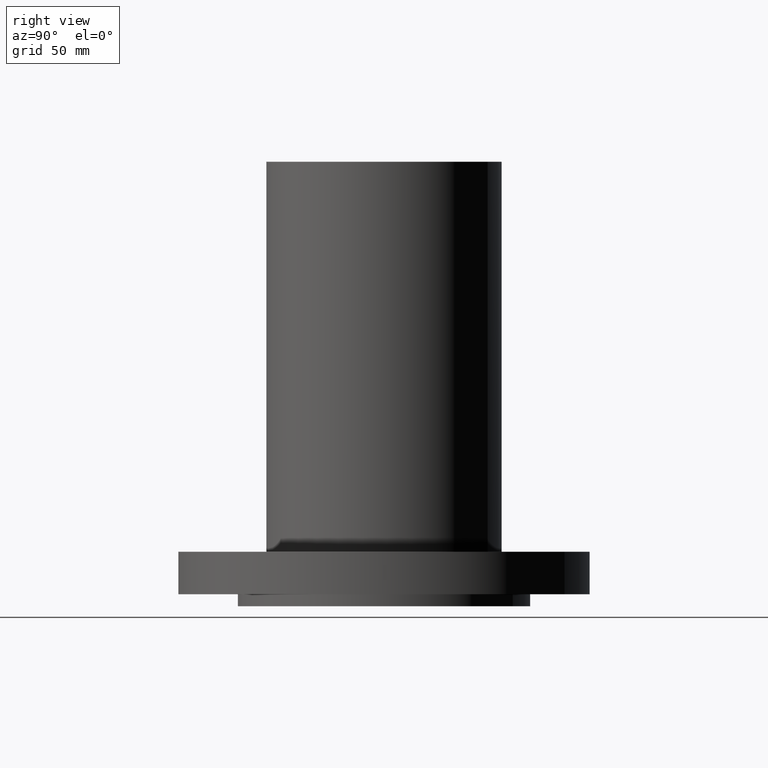
[diagram: clean part render]
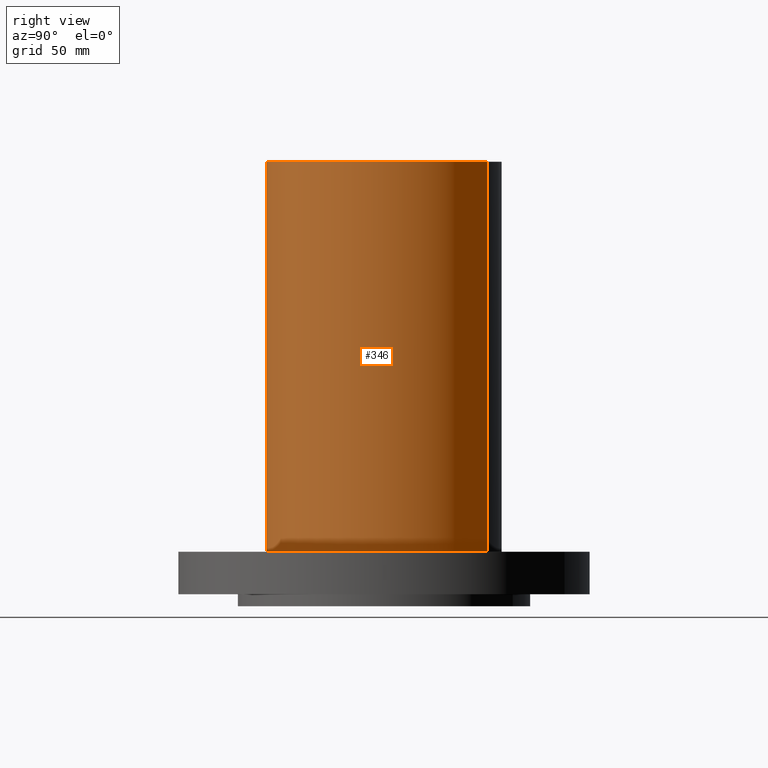
[diagram: same view with one face highlighted and labeled with its STEP entity id]
A machine part, right view. The second image highlights one B-rep face of the part: STEP entity #346.
In plain terms, the highlighted cylindrical surface (partial cylindrical patch) has radius 61.976 mm, axis along (0, 0, -1).
Its self-contained STEP definition (entity closure, byte-faithful):
#310=AXIS2_PLACEMENT_3D('Cylinder Axis2P3D',#307,#308,#309) ;
#314=AXIS2_PLACEMENT_3D('Circle Axis2P3D',#312,#313,$) ;
#330=AXIS2_PLACEMENT_3D('Circle Axis2P3D',#328,#329,$) ;
#307=CARTESIAN_POINT('Axis2P3D Location',(0.,0.,4.34375000002)) ;
#312=CARTESIAN_POINT('Axis2P3D Location',(0.,0.,0.877500000004)) ;
#316=CARTESIAN_POINT('Vertex',(1.1697983142,2.14130145102,0.877500000004)) ;
#318=CARTESIAN_POINT('Vertex',(-1.1697983142,-2.14130145102,0.877500000004)) ;
#321=CARTESIAN_POINT('Line Origine',(1.1697983142,2.14130145102,4.90750000002)) ;
#325=CARTESIAN_POINT('Vertex',(1.1697983142,2.14130145102,8.93750000004)) ;
#328=CARTESIAN_POINT('Axis2P3D Location',(0.,0.,8.93750000004)) ;
#332=CARTESIAN_POINT('Vertex',(-1.1697983142,-2.14130145102,8.93750000004)) ;
#335=CARTESIAN_POINT('Line Origine',(-1.1697983142,-2.14130145102,4.90750000002)) ;
#308=DIRECTION('Axis2P3D Direction',(0.,0.,-0.0393700787402)) ;
#309=DIRECTION('Axis2P3D XDirection',(-0.0188750212049,-0.0345504945626,0.)) ;
#313=DIRECTION('Axis2P3D Direction',(0.,0.,-0.0393700787402)) ;
#322=DIRECTION('Vector Direction',(0.,0.,-0.0393700787402)) ;
#329=DIRECTION('Axis2P3D Direction',(0.,0.,-0.0393700787402)) ;
#336=DIRECTION('Vector Direction',(0.,0.,-0.0393700787402)) ;
#323=VECTOR('Line Direction',#322,0.0393700787402) ;
#337=VECTOR('Line Direction',#336,0.0393700787402) ;
#341=ORIENTED_EDGE('',*,*,#320,.F.) ;
#342=ORIENTED_EDGE('',*,*,#327,.T.) ;
#343=ORIENTED_EDGE('',*,*,#334,.T.) ;
#344=ORIENTED_EDGE('',*,*,#339,.F.) ;
#346=ADVANCED_FACE('PartBody',(#345),#311,.T.) ;
#315=CIRCLE('generated circle',#314,2.44000000001) ;
#331=CIRCLE('generated circle',#330,2.44000000001) ;
#311=CYLINDRICAL_SURFACE('generated cylinder',#310,2.44000000001) ;
#320=EDGE_CURVE('',#317,#319,#315,.T.) ;
#327=EDGE_CURVE('',#317,#326,#324,.F.) ;
#334=EDGE_CURVE('',#326,#333,#331,.T.) ;
#339=EDGE_CURVE('',#319,#333,#338,.F.) ;
#340=EDGE_LOOP('',(#341,#342,#343,#344)) ;
#345=FACE_OUTER_BOUND('',#340,.T.) ;
#324=LINE('Line',#321,#323) ;
#338=LINE('Line',#335,#337) ;
#317=VERTEX_POINT('',#316) ;
#319=VERTEX_POINT('',#318) ;
#326=VERTEX_POINT('',#325) ;
#333=VERTEX_POINT('',#332) ;